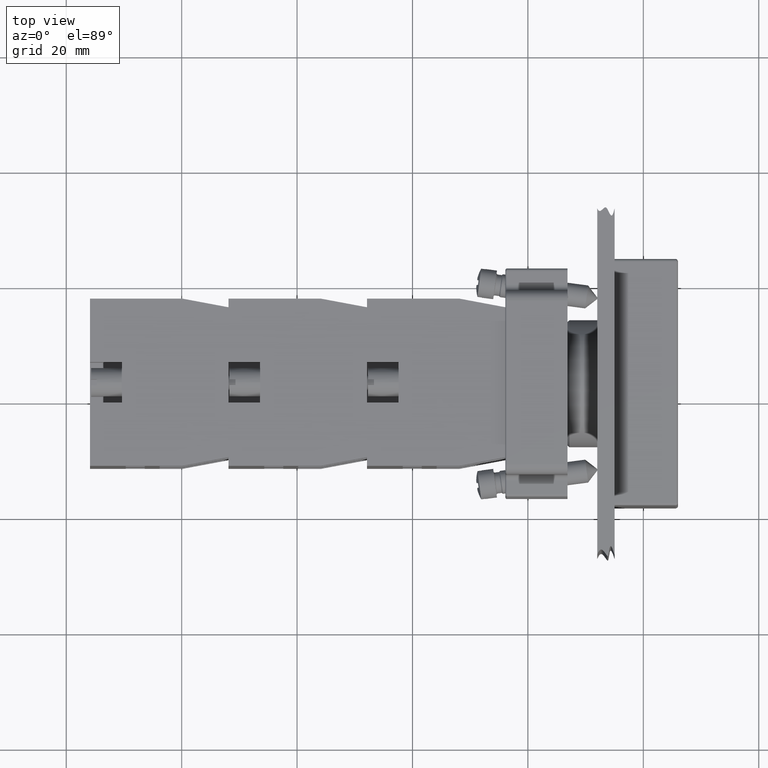
[diagram: clean part render]
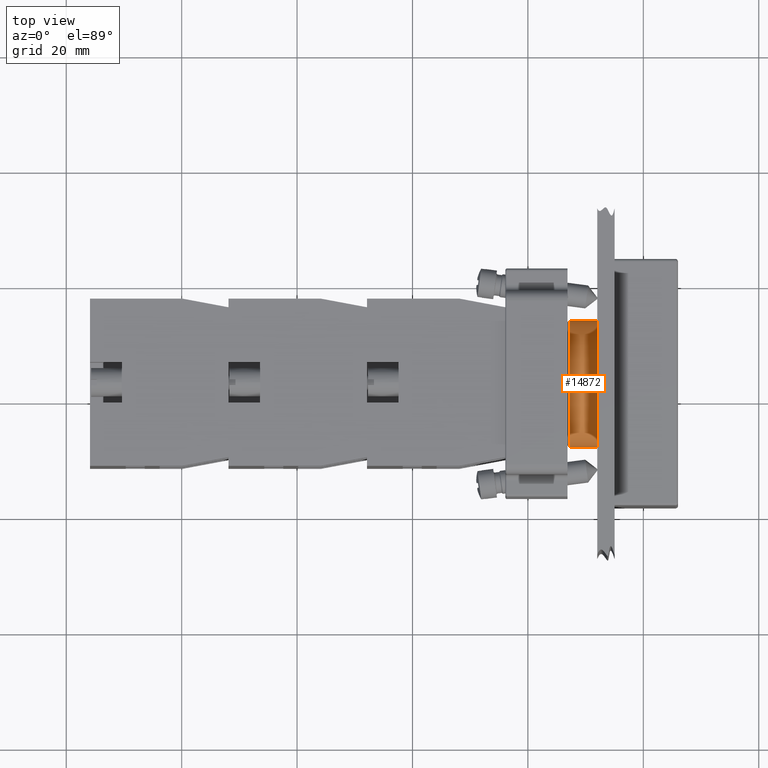
[diagram: same view with one face highlighted and labeled with its STEP entity id]
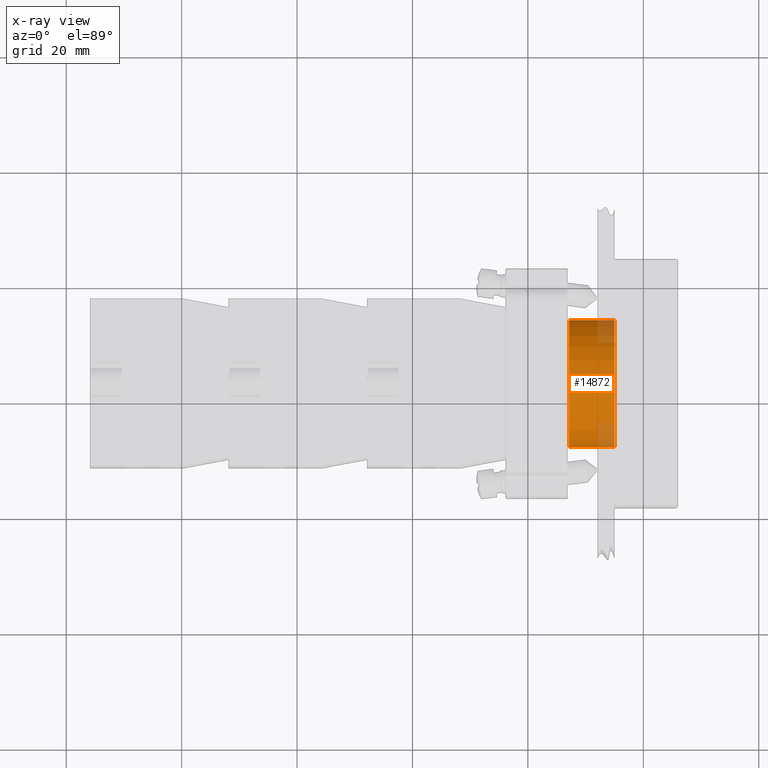
[diagram: x-ray of the same camera — body ghosted, the highlighted face saturated]
A machine part, top view. The second image highlights one B-rep face of the part: STEP entity #14872.
The next image is the same camera in x-ray: the body ghosted, the highlighted face saturated — about 14% of this face is hidden behind the body in this view.
In plain terms, the highlighted cylindrical surface (bore or boss wall) has radius 11 mm, axis along (1, -0, 0).
Its self-contained STEP definition (entity closure, byte-faithful):
#14769=CARTESIAN_POINT('',(-8.439384027103657,-11.031685679495357,1.347067E-015));
#14770=VERTEX_POINT('',#14769);
#14771=CARTESIAN_POINT('',(-8.439384027103657,-0.031685679495357,0.0));
#14772=DIRECTION('',(-1.0,0.0,0.0));
#14773=DIRECTION('',(0.0,1.0,0.0));
#14774=AXIS2_PLACEMENT_3D('',#14771,#14772,#14773);
#14775=CIRCLE('',#14774,11.0);
#14776=EDGE_CURVE('',#14770,#14770,#14775,.T.);
#14846=CARTESIAN_POINT('',(-16.251513745922896,10.968314320504646,0.0));
#14847=VERTEX_POINT('',#14846);
#14848=CARTESIAN_POINT('',(-16.251513745922896,-0.031685679495357,0.0));
#14849=DIRECTION('',(1.0,0.0,0.0));
#14850=DIRECTION('',(0.0,1.0,0.0));
#14851=AXIS2_PLACEMENT_3D('',#14848,#14849,#14850);
#14852=CIRCLE('',#14851,11.000000000000004);
#14853=EDGE_CURVE('',#14847,#14847,#14852,.T.);
#14861=CARTESIAN_POINT('',(-8.251513745922898,-0.031685679495357,0.0));
#14862=DIRECTION('',(1.0,-9.219481E-019,0.0));
#14863=DIRECTION('',(0.0,1.0,0.0));
#14864=AXIS2_PLACEMENT_3D('',#14861,#14862,#14863);
#14865=CYLINDRICAL_SURFACE('',#14864,11.0);
#14866=ORIENTED_EDGE('',*,*,#14776,.T.);
#14867=EDGE_LOOP('',(#14866));
#14868=FACE_OUTER_BOUND('',#14867,.T.);
#14869=ORIENTED_EDGE('',*,*,#14853,.T.);
#14870=EDGE_LOOP('',(#14869));
#14871=FACE_BOUND('',#14870,.T.);
#14872=ADVANCED_FACE('',(#14868,#14871),#14865,.T.);